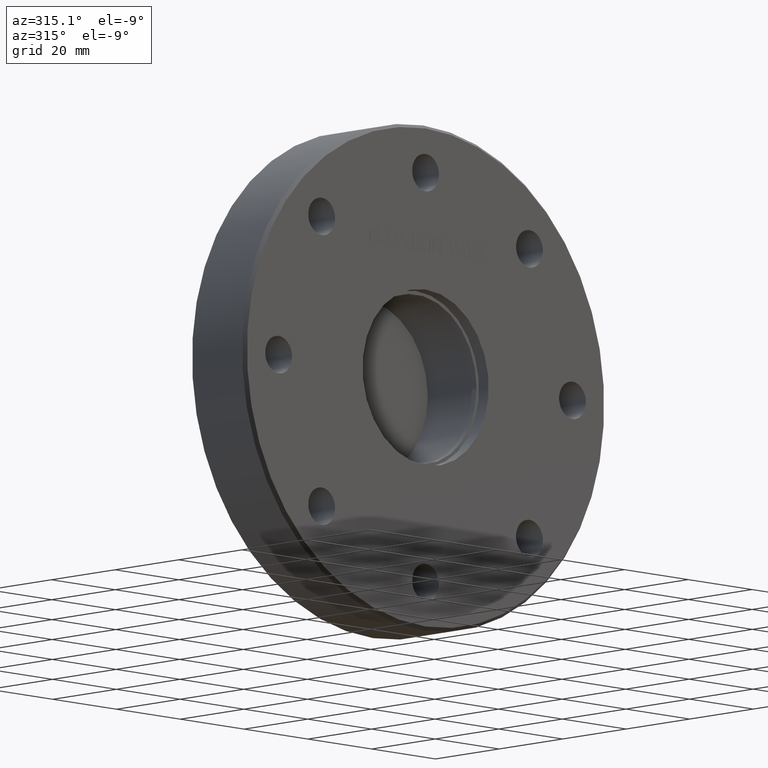
[diagram: clean part render]
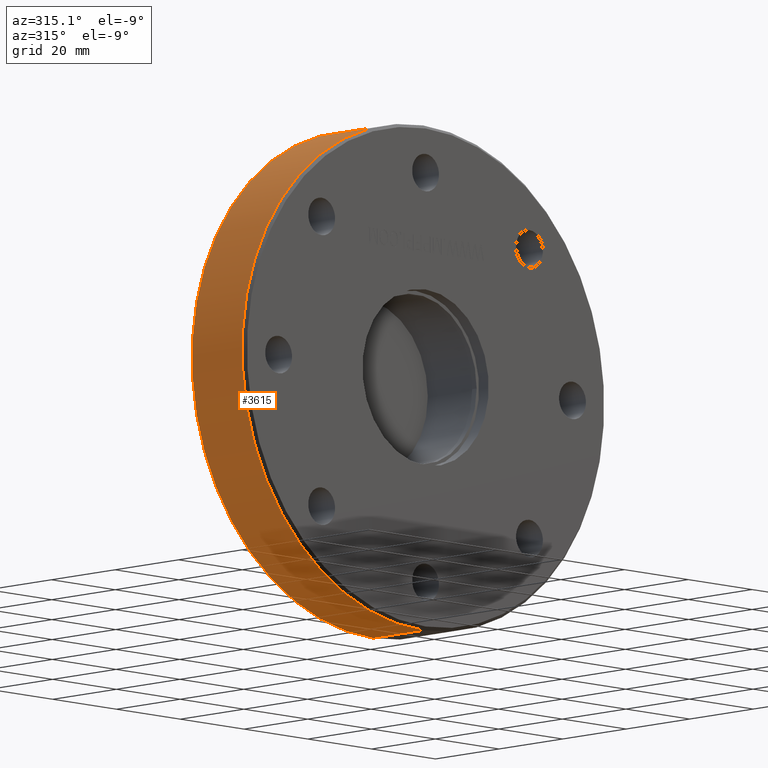
[diagram: same view with one face highlighted and labeled with its STEP entity id]
A machine part, auxiliary view. The second image highlights one B-rep face of the part: STEP entity #3615.
In plain terms, the highlighted cylindrical surface (partial cylindrical patch) has radius 56.769 mm, axis along (0, -1, 0).
Its self-contained STEP definition (entity closure, byte-faithful):
#101 = CARTESIAN_POINT ( 'NONE',  ( 0.0000000000000000000, 0.0000000000000000000, 0.0000000000000000000 ) ) ;
#568 = LINE ( 'NONE', #4815, #5664 ) ;
#645 = LINE ( 'NONE', #5572, #4543 ) ;
#691 = CARTESIAN_POINT ( 'NONE',  ( 0.0000000000000000000, -0.6500000000000003553, 0.0000000000000000000 ) ) ;
#1127 = VERTEX_POINT ( 'NONE', #6851 ) ;
#1597 = CARTESIAN_POINT ( 'NONE',  ( -2.737085596094337109E-16, -0.6500000000000003553, 2.235000000000002096 ) ) ;
#1921 = CARTESIAN_POINT ( 'NONE',  ( 0.0000000000000000000, -0.03000000000000000583, 0.0000000000000000000 ) ) ;
#2177 = EDGE_CURVE ( 'NONE', #5252, #5732, #568, .T. ) ;
#2754 = DIRECTION ( 'NONE',  ( 0.0000000000000000000, -1.000000000000000000, 0.0000000000000000000 ) ) ;
#3200 = CIRCLE ( 'NONE', #4595, 2.235000000000002096 ) ;
#3363 = CIRCLE ( 'NONE', #6835, 2.235000000000002096 ) ;
#3405 = DIRECTION ( 'NONE',  ( 0.0000000000000000000, 0.0000000000000000000, 1.000000000000000000 ) ) ;
#3446 = DIRECTION ( 'NONE',  ( 0.0000000000000000000, -1.000000000000000000, 0.0000000000000000000 ) ) ;
#3462 = EDGE_CURVE ( 'NONE', #5252, #4307, #3363, .T. ) ;
#3599 = EDGE_CURVE ( 'NONE', #4307, #1127, #645, .T. ) ;
#3615 = ADVANCED_FACE ( 'NONE', ( #4637 ), #5950, .T. ) ;
#4307 = VERTEX_POINT ( 'NONE', #4990 ) ;
#4543 = VECTOR ( 'NONE', #2754, 39.37007874015748143 ) ;
#4595 = AXIS2_PLACEMENT_3D ( 'NONE', #691, #3446, #5734 ) ;
#4637 = FACE_OUTER_BOUND ( 'NONE', #8936, .T. ) ;
#4815 = CARTESIAN_POINT ( 'NONE',  ( 0.0000000000000000000, 0.0000000000000000000, 2.235000000000002096 ) ) ;
#4845 = DIRECTION ( 'NONE',  ( 0.0000000000000000000, -1.000000000000000000, 0.0000000000000000000 ) ) ;
#4990 = CARTESIAN_POINT ( 'NONE',  ( -2.737085596094334151E-16, -0.03000000000000000583, -2.234999999999999876 ) ) ;
#5212 = ORIENTED_EDGE ( 'NONE', *, *, #3599, .T. ) ;
#5252 = VERTEX_POINT ( 'NONE', #5727 ) ;
#5270 = ORIENTED_EDGE ( 'NONE', *, *, #6080, .F. ) ;
#5572 = CARTESIAN_POINT ( 'NONE',  ( -2.737085596094337109E-16, 0.0000000000000000000, -2.235000000000002096 ) ) ;
#5664 = VECTOR ( 'NONE', #4845, 39.37007874015748143 ) ;
#5727 = CARTESIAN_POINT ( 'NONE',  ( 0.0000000000000000000, -0.03000000000000000583, 2.235000000000002096 ) ) ;
#5732 = VERTEX_POINT ( 'NONE', #1597 ) ;
#5734 = DIRECTION ( 'NONE',  ( 0.0000000000000000000, 0.0000000000000000000, 1.000000000000000000 ) ) ;
#5950 = CYLINDRICAL_SURFACE ( 'NONE', #8685, 2.235000000000002096 ) ;
#6080 = EDGE_CURVE ( 'NONE', #5732, #1127, #3200, .T. ) ;
#6167 = DIRECTION ( 'NONE',  ( 0.0000000000000000000, -1.000000000000000000, 0.0000000000000000000 ) ) ;
#6754 = DIRECTION ( 'NONE',  ( 0.0000000000000000000, -1.000000000000000000, 0.0000000000000000000 ) ) ;
#6835 = AXIS2_PLACEMENT_3D ( 'NONE', #1921, #6754, #3405 ) ;
#6851 = CARTESIAN_POINT ( 'NONE',  ( 0.0000000000000000000, -0.6500000000000003553, -2.235000000000002096 ) ) ;
#7040 = ORIENTED_EDGE ( 'NONE', *, *, #2177, .F. ) ;
#8226 = ORIENTED_EDGE ( 'NONE', *, *, #3462, .T. ) ;
#8274 = DIRECTION ( 'NONE',  ( 0.0000000000000000000, 0.0000000000000000000, 1.000000000000000000 ) ) ;
#8685 = AXIS2_PLACEMENT_3D ( 'NONE', #101, #6167, #8274 ) ;
#8936 = EDGE_LOOP ( 'NONE', ( #8226, #5212, #5270, #7040 ) ) ;